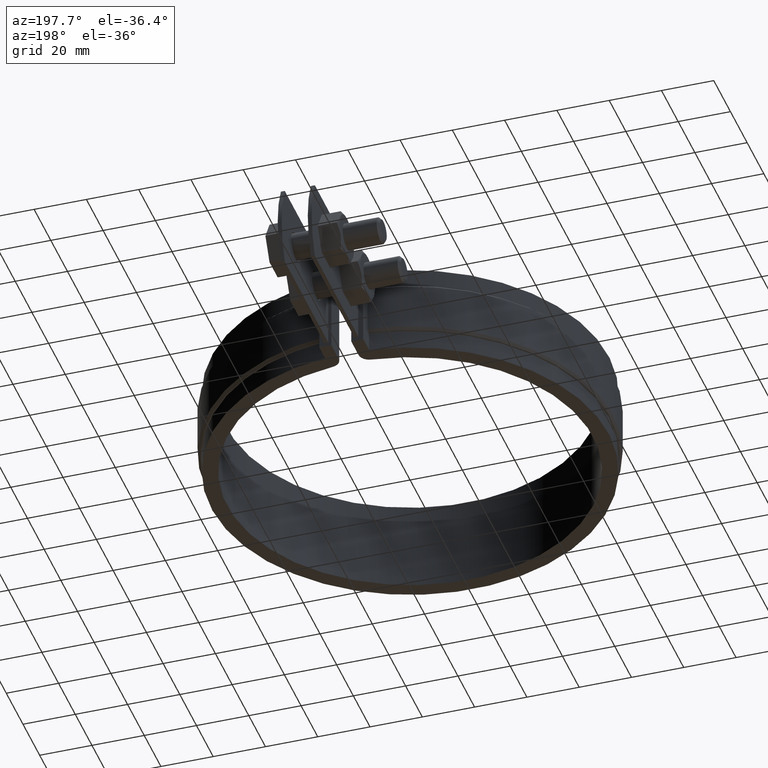
[diagram: clean part render]
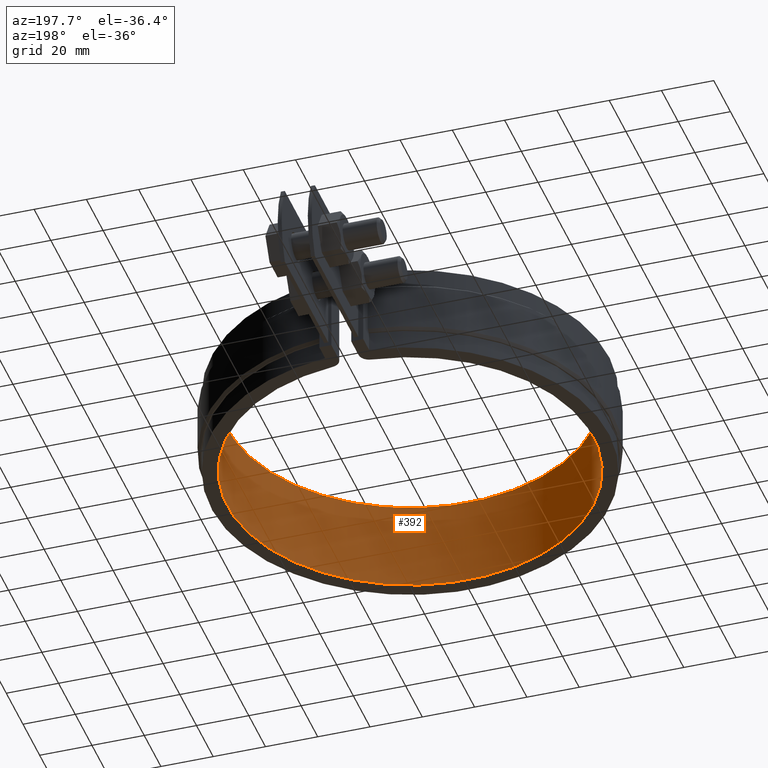
[diagram: same view with one face highlighted and labeled with its STEP entity id]
A machine part, auxiliary view. The second image highlights one B-rep face of the part: STEP entity #392.
In plain terms, the highlighted cylindrical surface (partial cylindrical patch) has radius 70 mm, axis along (0, 0, -1).
Its self-contained STEP definition (entity closure, byte-faithful):
#392 = ADVANCED_FACE( '', ( #640 ), #641, .F. );
#640 = FACE_OUTER_BOUND( '', #1726, .T. );
#641 = CYLINDRICAL_SURFACE( '', #1727, 70.0000000000000 );
#1726 = EDGE_LOOP( '', ( #4050, #4051, #4052, #4053 ) );
#1727 = AXIS2_PLACEMENT_3D( '', #4054, #4055, #4056 );
#4050 = ORIENTED_EDGE( '', *, *, #4832, .F. );
#4051 = ORIENTED_EDGE( '', *, *, #4843, .F. );
#4052 = ORIENTED_EDGE( '', *, *, #4840, .T. );
#4053 = ORIENTED_EDGE( '', *, *, #4842, .T. );
#4054 = CARTESIAN_POINT( '', ( 0.000000000000000, 0.000000000000000, -33.5000000000000 ) );
#4055 = DIRECTION( '', ( 0.000000000000000, 0.000000000000000, -1.00000000000000 ) );
#4056 = DIRECTION( '', ( 0.000000000000000, 1.00000000000000, 0.000000000000000 ) );
#4832 = EDGE_CURVE( '', #5372, #5374, #5375, .T. );
#4840 = EDGE_CURVE( '', #5385, #5383, #5386, .T. );
#4842 = EDGE_CURVE( '', #5383, #5374, #5388, .T. );
#4843 = EDGE_CURVE( '', #5385, #5372, #5389, .T. );
#5372 = VERTEX_POINT( '', #7923 );
#5374 = VERTEX_POINT( '', #7925 );
#5375 = CIRCLE( '', #7926, 70.0000000000000 );
#5383 = VERTEX_POINT( '', #7943 );
#5385 = VERTEX_POINT( '', #7945 );
#5386 = CIRCLE( '', #7946, 70.0000000000000 );
#5388 = LINE( '', #7948, #7949 );
#5389 = LINE( '', #7950, #7951 );
#7923 = CARTESIAN_POINT( '', ( 7.37837837837830, 69.6100533867449, 1.50000000000000 ) );
#7925 = CARTESIAN_POINT( '', ( -7.37837837837833, 69.6100533867449, 1.50000000000000 ) );
#7926 = AXIS2_PLACEMENT_3D( '', #8716, #8717, #8718 );
#7943 = CARTESIAN_POINT( '', ( -7.37837837837833, 69.6100533867449, -33.5000000000000 ) );
#7945 = CARTESIAN_POINT( '', ( 7.37837837837830, 69.6100533867449, -33.5000000000000 ) );
#7946 = AXIS2_PLACEMENT_3D( '', #8728, #8729, #8730 );
#7948 = CARTESIAN_POINT( '', ( -7.37837837837833, 69.6100533867449, -33.5000000000000 ) );
#7949 = VECTOR( '', #8734, 1000.00000000000 );
#7950 = CARTESIAN_POINT( '', ( 7.37837837837830, 69.6100533867449, -33.5000000000000 ) );
#7951 = VECTOR( '', #8735, 1000.00000000000 );
#8716 = CARTESIAN_POINT( '', ( 0.000000000000000, 0.000000000000000, 1.50000000000000 ) );
#8717 = DIRECTION( '', ( 0.000000000000000, 0.000000000000000, -1.00000000000000 ) );
#8718 = DIRECTION( '', ( 1.00000000000000, 0.000000000000000, 0.000000000000000 ) );
#8728 = CARTESIAN_POINT( '', ( 0.000000000000000, 0.000000000000000, -33.5000000000000 ) );
#8729 = DIRECTION( '', ( 0.000000000000000, 0.000000000000000, -1.00000000000000 ) );
#8730 = DIRECTION( '', ( 1.00000000000000, 0.000000000000000, 0.000000000000000 ) );
#8734 = DIRECTION( '', ( 0.000000000000000, 0.000000000000000, 1.00000000000000 ) );
#8735 = DIRECTION( '', ( 0.000000000000000, 0.000000000000000, 1.00000000000000 ) );